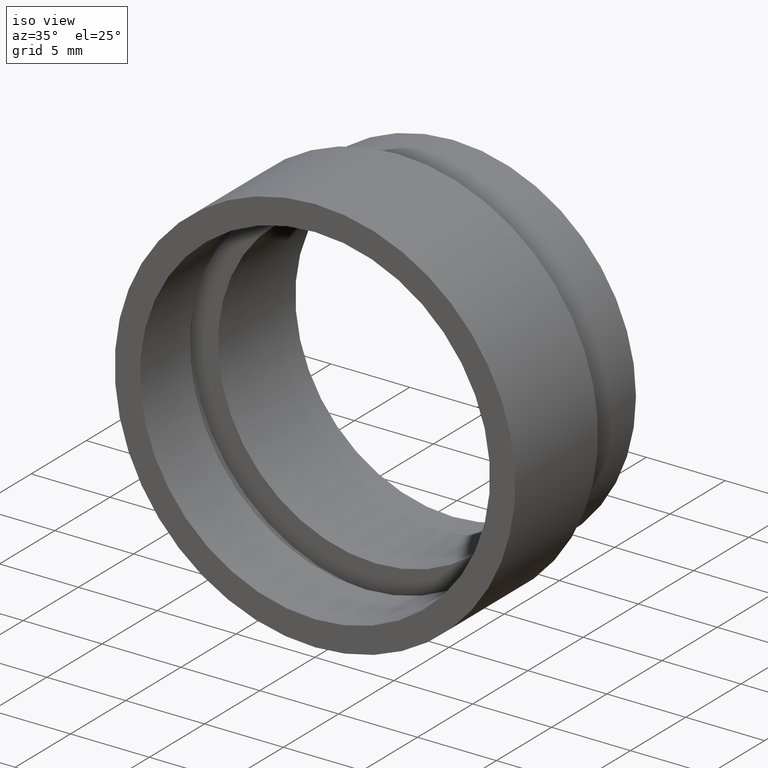
[diagram: clean part render]
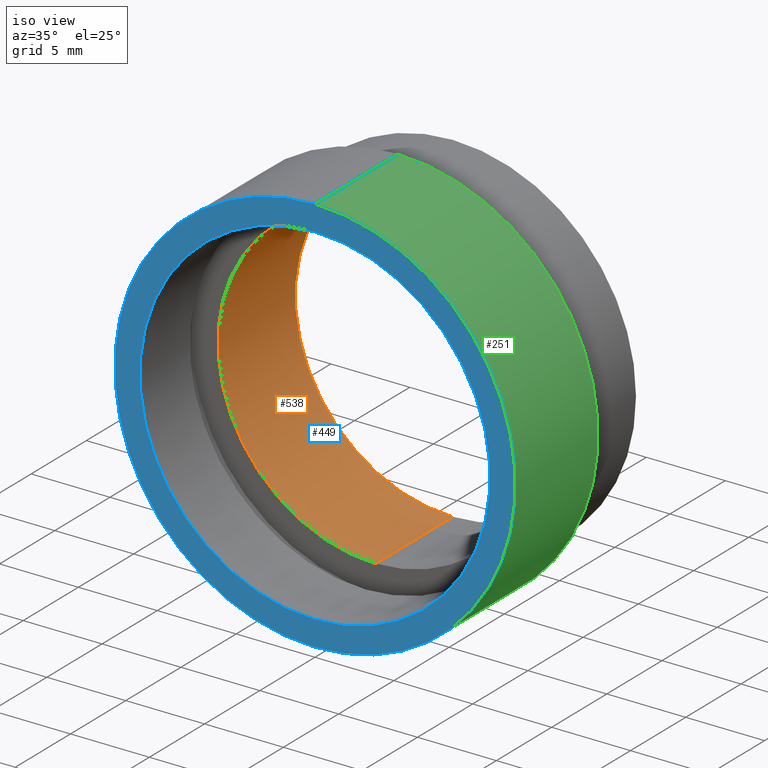
[diagram: same view with three faces highlighted in distinct colors, each labeled with its STEP entity id]
A machine part, iso view with three faces highlighted in distinct colors.
Their STEP definitions:

[orange] entity #538 — the highlighted cylindrical surface (partial cylindrical patch) has radius 10 mm, axis along (-0, 1, -0).
#3 = CARTESIAN_POINT ( 'NONE',  ( 0.0000000000000000000, 12.49999999999998400, 10.00000000000002000 ) ) ;
#40 = EDGE_LOOP ( 'NONE', ( #392, #56, #572, #463 ) ) ;
#47 = CARTESIAN_POINT ( 'NONE',  ( 1.224646799147355400E-015, 12.49999999999998400, -10.00000000000002000 ) ) ;
#51 = CYLINDRICAL_SURFACE ( 'NONE', #136, 10.00000000000002000 ) ;
#56 = ORIENTED_EDGE ( 'NONE', *, *, #63, .T. ) ;
#63 = EDGE_CURVE ( 'NONE', #248, #404, #297, .T. ) ;
#70 = DIRECTION ( 'NONE',  ( -0.0000000000000000000, 1.000000000000000000, -0.0000000000000000000 ) ) ;
#79 = CARTESIAN_POINT ( 'NONE',  ( 0.0000000000000000000, 161.3761669434274500, 10.00000000000002000 ) ) ;
#83 = DIRECTION ( 'NONE',  ( 0.0000000000000000000, 0.0000000000000000000, 1.000000000000000000 ) ) ;
#111 = DIRECTION ( 'NONE',  ( -0.0000000000000000000, 1.000000000000000000, -0.0000000000000000000 ) ) ;
#128 = VERTEX_POINT ( 'NONE', #335 ) ;
#131 = EDGE_CURVE ( 'NONE', #128, #360, #555, .T. ) ;
#133 = DIRECTION ( 'NONE',  ( -0.0000000000000000000, 1.000000000000000000, -0.0000000000000000000 ) ) ;
#136 = AXIS2_PLACEMENT_3D ( 'NONE', #501, #208, #551 ) ;
#208 = DIRECTION ( 'NONE',  ( -0.0000000000000000000, 1.000000000000000000, -0.0000000000000000000 ) ) ;
#228 = CIRCLE ( 'NONE', #623, 10.00000000000002000 ) ;
#239 = VECTOR ( 'NONE', #111, 1000.000000000000000 ) ;
#248 = VERTEX_POINT ( 'NONE', #289 ) ;
#282 = EDGE_CURVE ( 'NONE', #404, #360, #568, .T. ) ;
#289 = CARTESIAN_POINT ( 'NONE',  ( 1.224646799147355400E-015, 5.499999999999976900, -10.00000000000002000 ) ) ;
#297 = LINE ( 'NONE', #411, #239 ) ;
#335 = CARTESIAN_POINT ( 'NONE',  ( 0.0000000000000000000, 5.499999999999976900, 10.00000000000002000 ) ) ;
#348 = VECTOR ( 'NONE', #614, 1000.000000000000000 ) ;
#356 = AXIS2_PLACEMENT_3D ( 'NONE', #530, #133, #83 ) ;
#360 = VERTEX_POINT ( 'NONE', #3 ) ;
#392 = ORIENTED_EDGE ( 'NONE', *, *, #584, .F. ) ;
#404 = VERTEX_POINT ( 'NONE', #47 ) ;
#411 = CARTESIAN_POINT ( 'NONE',  ( 1.224646799147355400E-015, 161.3761669434274500, -10.00000000000002000 ) ) ;
#463 = ORIENTED_EDGE ( 'NONE', *, *, #131, .F. ) ;
#501 = CARTESIAN_POINT ( 'NONE',  ( 0.0000000000000000000, 161.3761669434274500, 0.0000000000000000000 ) ) ;
#530 = CARTESIAN_POINT ( 'NONE',  ( 0.0000000000000000000, 12.49999999999998400, 0.0000000000000000000 ) ) ;
#538 = ADVANCED_FACE ( 'NONE', ( #566 ), #51, .F. ) ;
#551 = DIRECTION ( 'NONE',  ( 0.0000000000000000000, 0.0000000000000000000, 1.000000000000000000 ) ) ;
#555 = LINE ( 'NONE', #79, #348 ) ;
#557 = CARTESIAN_POINT ( 'NONE',  ( 0.0000000000000000000, 5.499999999999976900, 0.0000000000000000000 ) ) ;
#559 = DIRECTION ( 'NONE',  ( 0.0000000000000000000, 0.0000000000000000000, 1.000000000000000000 ) ) ;
#566 = FACE_OUTER_BOUND ( 'NONE', #40, .T. ) ;
#568 = CIRCLE ( 'NONE', #356, 10.00000000000002000 ) ;
#572 = ORIENTED_EDGE ( 'NONE', *, *, #282, .T. ) ;
#584 = EDGE_CURVE ( 'NONE', #248, #128, #228, .T. ) ;
#614 = DIRECTION ( 'NONE',  ( -0.0000000000000000000, 1.000000000000000000, -0.0000000000000000000 ) ) ;
#623 = AXIS2_PLACEMENT_3D ( 'NONE', #557, #70, #559 ) ;

[blue] entity #449 — the highlighted planar face has unit normal (-0, 1, 0).
#8 = CARTESIAN_POINT ( 'NONE',  ( 1.555301434917141000E-015, -2.775557561562891400E-014, -12.70000000000002100 ) ) ;
#11 = DIRECTION ( 'NONE',  ( -0.0000000000000000000, 1.000000000000000000, -0.0000000000000000000 ) ) ;
#66 = AXIS2_PLACEMENT_3D ( 'NONE', #379, #327, #73 ) ;
#69 = CIRCLE ( 'NONE', #66, 12.70000000000002100 ) ;
#73 = DIRECTION ( 'NONE',  ( 0.0000000000000000000, 0.0000000000000000000, 1.000000000000000000 ) ) ;
#87 = ORIENTED_EDGE ( 'NONE', *, *, #261, .F. ) ;
#94 = ORIENTED_EDGE ( 'NONE', *, *, #461, .T. ) ;
#113 = CIRCLE ( 'NONE', #384, 11.10000000000001700 ) ;
#123 = EDGE_CURVE ( 'NONE', #550, #549, #69, .T. ) ;
#130 = AXIS2_PLACEMENT_3D ( 'NONE', #313, #604, #260 ) ;
#132 = DIRECTION ( 'NONE',  ( 0.0000000000000000000, 0.0000000000000000000, 1.000000000000000000 ) ) ;
#140 = EDGE_LOOP ( 'NONE', ( #94, #229 ) ) ;
#193 = DIRECTION ( 'NONE',  ( -0.0000000000000000000, 1.000000000000000000, -0.0000000000000000000 ) ) ;
#214 = CARTESIAN_POINT ( 'NONE',  ( 1.359357947053564100E-015, -2.775557561562891400E-014, -11.10000000000001700 ) ) ;
#229 = ORIENTED_EDGE ( 'NONE', *, *, #293, .T. ) ;
#260 = DIRECTION ( 'NONE',  ( 0.0000000000000000000, 0.0000000000000000000, 1.000000000000000000 ) ) ;
#261 = EDGE_CURVE ( 'NONE', #549, #550, #472, .T. ) ;
#265 = DIRECTION ( 'NONE',  ( 0.0000000000000000000, 0.0000000000000000000, 1.000000000000000000 ) ) ;
#293 = EDGE_CURVE ( 'NONE', #532, #520, #113, .T. ) ;
#313 = CARTESIAN_POINT ( 'NONE',  ( 11.10000000000001700, -1.580543700394483700E-014, 0.0000000000000000000 ) ) ;
#327 = DIRECTION ( 'NONE',  ( -0.0000000000000000000, 1.000000000000000000, -0.0000000000000000000 ) ) ;
#337 = DIRECTION ( 'NONE',  ( 0.0000000000000000000, 0.0000000000000000000, 1.000000000000000000 ) ) ;
#357 = FACE_OUTER_BOUND ( 'NONE', #598, .T. ) ;
#358 = CARTESIAN_POINT ( 'NONE',  ( 0.0000000000000000000, -2.775557561562891400E-014, 12.70000000000002100 ) ) ;
#365 = CARTESIAN_POINT ( 'NONE',  ( 0.0000000000000000000, -2.775557561562891400E-014, 0.0000000000000000000 ) ) ;
#372 = AXIS2_PLACEMENT_3D ( 'NONE', #365, #11, #265 ) ;
#379 = CARTESIAN_POINT ( 'NONE',  ( 0.0000000000000000000, -2.775557561562891400E-014, 0.0000000000000000000 ) ) ;
#384 = AXIS2_PLACEMENT_3D ( 'NONE', #624, #475, #132 ) ;
#388 = CARTESIAN_POINT ( 'NONE',  ( 0.0000000000000000000, -2.775557561562891400E-014, 0.0000000000000000000 ) ) ;
#401 = PLANE ( 'NONE',  #130 ) ;
#449 = ADVANCED_FACE ( 'NONE', ( #357, #586 ), #401, .F. ) ;
#460 = AXIS2_PLACEMENT_3D ( 'NONE', #388, #193, #337 ) ;
#461 = EDGE_CURVE ( 'NONE', #520, #532, #473, .T. ) ;
#472 = CIRCLE ( 'NONE', #460, 12.70000000000002100 ) ;
#473 = CIRCLE ( 'NONE', #372, 11.10000000000001700 ) ;
#475 = DIRECTION ( 'NONE',  ( -0.0000000000000000000, 1.000000000000000000, -0.0000000000000000000 ) ) ;
#520 = VERTEX_POINT ( 'NONE', #599 ) ;
#532 = VERTEX_POINT ( 'NONE', #214 ) ;
#549 = VERTEX_POINT ( 'NONE', #8 ) ;
#550 = VERTEX_POINT ( 'NONE', #358 ) ;
#567 = ORIENTED_EDGE ( 'NONE', *, *, #123, .F. ) ;
#586 = FACE_BOUND ( 'NONE', #140, .T. ) ;
#598 = EDGE_LOOP ( 'NONE', ( #567, #87 ) ) ;
#599 = CARTESIAN_POINT ( 'NONE',  ( 0.0000000000000000000, -2.775557561562891400E-014, 11.10000000000001700 ) ) ;
#604 = DIRECTION ( 'NONE',  ( -0.0000000000000000000, 1.000000000000000000, 0.0000000000000000000 ) ) ;
#624 = CARTESIAN_POINT ( 'NONE',  ( 0.0000000000000000000, -2.775557561562891400E-014, 0.0000000000000000000 ) ) ;

[green] entity #251 — the highlighted cylindrical surface (partial cylindrical patch) has radius 12.7 mm, axis along (-0, 1, -0).
#8 = CARTESIAN_POINT ( 'NONE',  ( 1.555301434917141000E-015, -2.775557561562891400E-014, -12.70000000000002100 ) ) ;
#18 = CARTESIAN_POINT ( 'NONE',  ( 1.555301434917140800E-015, 7.499999999999978700, -12.70000000000001900 ) ) ;
#33 = ORIENTED_EDGE ( 'NONE', *, *, #537, .T. ) ;
#65 = VECTOR ( 'NONE', #453, 1000.000000000000000 ) ;
#66 = AXIS2_PLACEMENT_3D ( 'NONE', #379, #327, #73 ) ;
#69 = CIRCLE ( 'NONE', #66, 12.70000000000002100 ) ;
#73 = DIRECTION ( 'NONE',  ( 0.0000000000000000000, 0.0000000000000000000, 1.000000000000000000 ) ) ;
#91 = EDGE_CURVE ( 'NONE', #550, #500, #226, .T. ) ;
#102 = EDGE_CURVE ( 'NONE', #500, #468, #247, .T. ) ;
#123 = EDGE_CURVE ( 'NONE', #550, #549, #69, .T. ) ;
#126 = ORIENTED_EDGE ( 'NONE', *, *, #123, .T. ) ;
#137 = FACE_OUTER_BOUND ( 'NONE', #457, .T. ) ;
#143 = AXIS2_PLACEMENT_3D ( 'NONE', #570, #283, #615 ) ;
#160 = CARTESIAN_POINT ( 'NONE',  ( 1.555301434917141000E-015, 161.3761669434274500, -12.70000000000002100 ) ) ;
#183 = ORIENTED_EDGE ( 'NONE', *, *, #91, .F. ) ;
#203 = ORIENTED_EDGE ( 'NONE', *, *, #102, .F. ) ;
#226 = LINE ( 'NONE', #428, #569 ) ;
#244 = DIRECTION ( 'NONE',  ( 0.0000000000000000000, 0.0000000000000000000, 1.000000000000000000 ) ) ;
#247 = CIRCLE ( 'NONE', #143, 12.70000000000001900 ) ;
#251 = ADVANCED_FACE ( 'NONE', ( #137 ), #262, .T. ) ;
#259 = AXIS2_PLACEMENT_3D ( 'NONE', #476, #528, #244 ) ;
#262 = CYLINDRICAL_SURFACE ( 'NONE', #259, 12.70000000000002100 ) ;
#278 = DIRECTION ( 'NONE',  ( -0.0000000000000000000, 1.000000000000000000, -0.0000000000000000000 ) ) ;
#283 = DIRECTION ( 'NONE',  ( -0.0000000000000000000, 1.000000000000000000, -0.0000000000000000000 ) ) ;
#310 = CARTESIAN_POINT ( 'NONE',  ( 0.0000000000000000000, 7.499999999999978700, 12.70000000000001900 ) ) ;
#327 = DIRECTION ( 'NONE',  ( -0.0000000000000000000, 1.000000000000000000, -0.0000000000000000000 ) ) ;
#358 = CARTESIAN_POINT ( 'NONE',  ( 0.0000000000000000000, -2.775557561562891400E-014, 12.70000000000002100 ) ) ;
#379 = CARTESIAN_POINT ( 'NONE',  ( 0.0000000000000000000, -2.775557561562891400E-014, 0.0000000000000000000 ) ) ;
#428 = CARTESIAN_POINT ( 'NONE',  ( 0.0000000000000000000, 161.3761669434274500, 12.70000000000002100 ) ) ;
#453 = DIRECTION ( 'NONE',  ( -0.0000000000000000000, 1.000000000000000000, -0.0000000000000000000 ) ) ;
#457 = EDGE_LOOP ( 'NONE', ( #126, #33, #203, #183 ) ) ;
#468 = VERTEX_POINT ( 'NONE', #18 ) ;
#476 = CARTESIAN_POINT ( 'NONE',  ( 0.0000000000000000000, 161.3761669434274500, 0.0000000000000000000 ) ) ;
#483 = LINE ( 'NONE', #160, #65 ) ;
#500 = VERTEX_POINT ( 'NONE', #310 ) ;
#528 = DIRECTION ( 'NONE',  ( -0.0000000000000000000, 1.000000000000000000, -0.0000000000000000000 ) ) ;
#537 = EDGE_CURVE ( 'NONE', #549, #468, #483, .T. ) ;
#549 = VERTEX_POINT ( 'NONE', #8 ) ;
#550 = VERTEX_POINT ( 'NONE', #358 ) ;
#569 = VECTOR ( 'NONE', #278, 1000.000000000000000 ) ;
#570 = CARTESIAN_POINT ( 'NONE',  ( 0.0000000000000000000, 7.499999999999978700, 0.0000000000000000000 ) ) ;
#615 = DIRECTION ( 'NONE',  ( 0.0000000000000000000, 0.0000000000000000000, 1.000000000000000000 ) ) ;